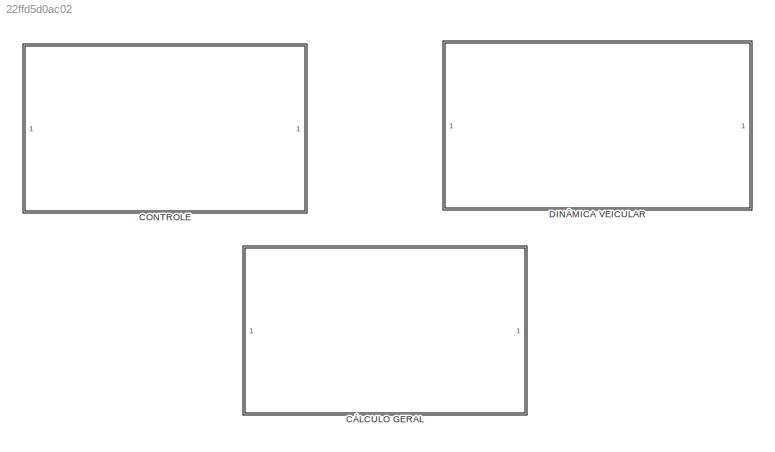
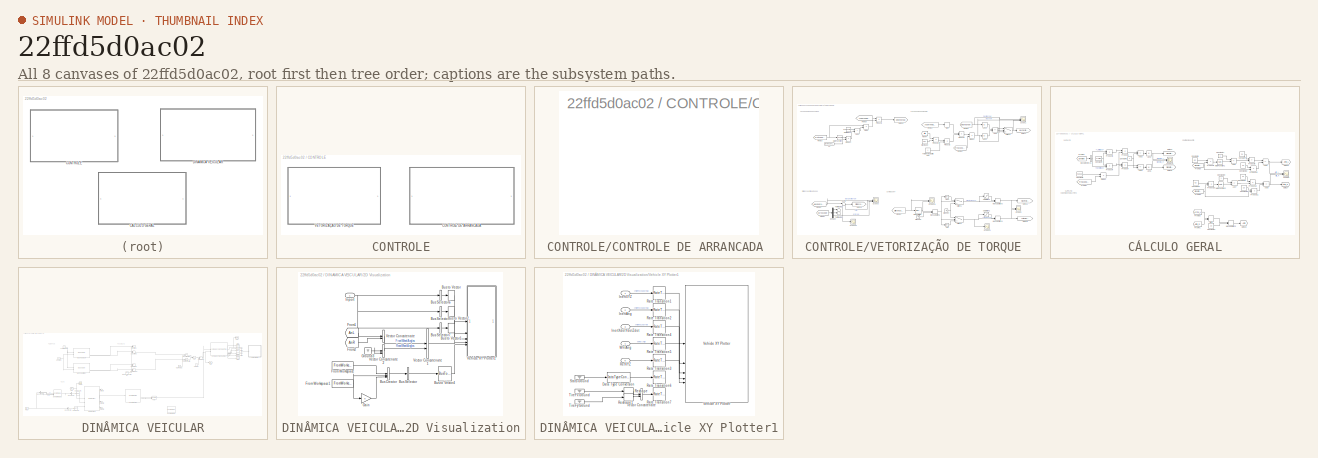
[diagram: thumbnail index - all 8 canvases of the model, root first then tree order]
MODEL slx_22ffd5d0ac02
KIND model
CONFIG AbsTol = auto
CONFIG EnableMultiTasking = off
CONFIG FixedStep = auto
CONFIG MaxStep = auto
CONFIG MinStep = auto
CONFIG RelTol = 1e-3
CONFIG SampleTimeConstraint = Unconstrained
CONFIG SolverName = VariableStepAuto
CONFIG StartTime = 0.0
CONFIG StopTime = 100
BLOCK [SubSystem] CONTROLE
BLOCK [SubSystem] CONTROLE/CONTROLE DE ARRANCADA 
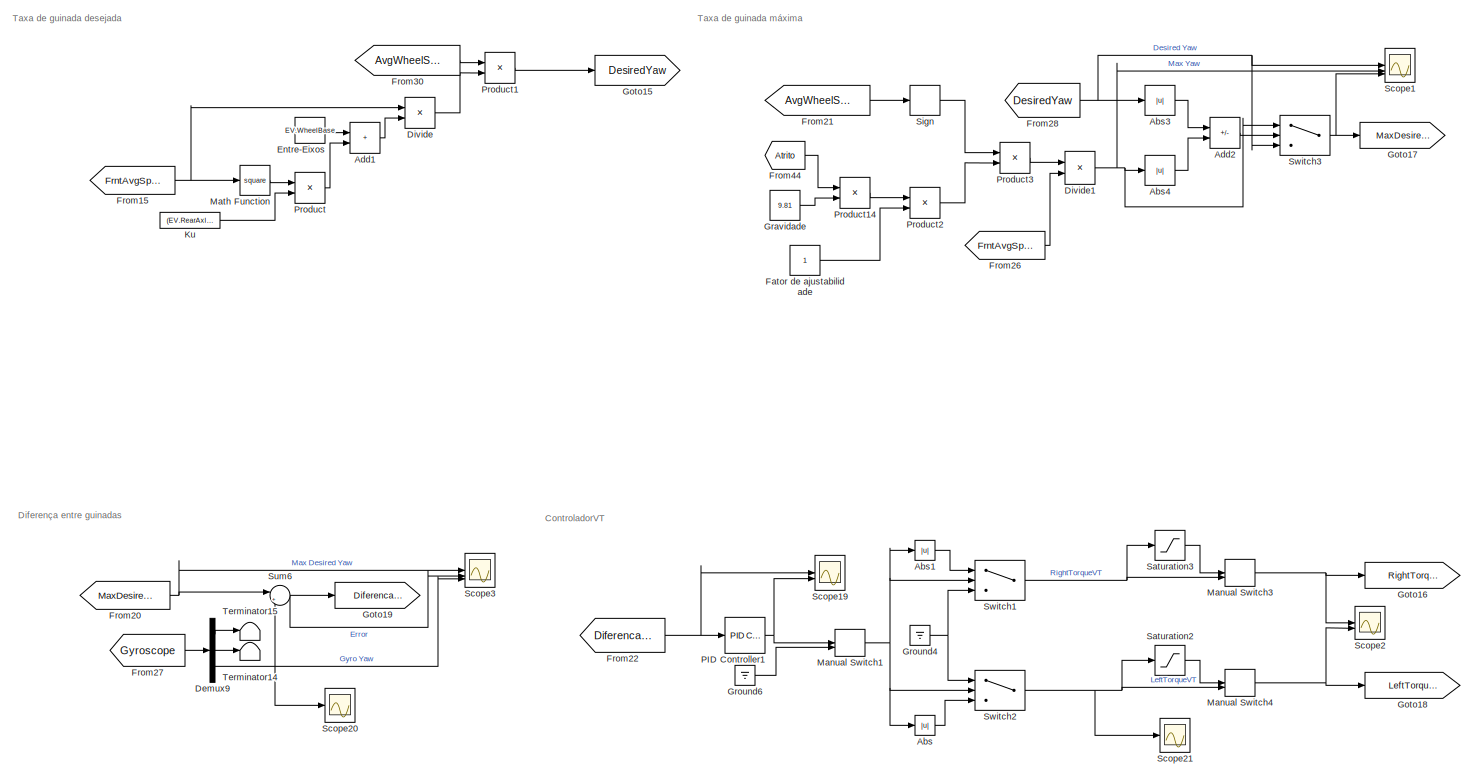
[diagram: CONTROLE/VETORIZAÇÃO DE TORQUE  - part 1/1, most of the canvas]
BLOCK [SubSystem] CONTROLE/VETORIZAÇÃO DE TORQUE 
BLOCK [Abs] CONTROLE/VETORIZAÇÃO DE TORQUE /Abs
  Commented = on
  SaturateOnIntegerOverflow = off
BLOCK [Abs] CONTROLE/VETORIZAÇÃO DE TORQUE /Abs1
  Commented = on
  SaturateOnIntegerOverflow = off
BLOCK [Abs] CONTROLE/VETORIZAÇÃO DE TORQUE /Abs3
  Commented = on
  SaturateOnIntegerOverflow = off
BLOCK [Abs] CONTROLE/VETORIZAÇÃO DE TORQUE /Abs4
  Commented = on
  SaturateOnIntegerOverflow = off
BLOCK [Sum] CONTROLE/VETORIZAÇÃO DE TORQUE /Add1
  Commented = on
  IconShape = rectangular
BLOCK [Sum] CONTROLE/VETORIZAÇÃO DE TORQUE /Add2
  Commented = on
  IconShape = rectangular
  Inputs = +-
BLOCK [Demux] CONTROLE/VETORIZAÇÃO DE TORQUE /Demux9
  Commented = on
  Outputs = 3
BLOCK [Product] CONTROLE/VETORIZAÇÃO DE TORQUE /Divide
  Commented = on
  Inputs = */
BLOCK [Product] CONTROLE/VETORIZAÇÃO DE TORQUE /Divide1
  Commented = on
  Inputs = */
BLOCK [Constant] CONTROLE/VETORIZAÇÃO DE TORQUE /Entre-Eixos
  Commented = on
  Value = EV.WheelBase
BLOCK [Constant] CONTROLE/VETORIZAÇÃO DE TORQUE /Fator de ajustabilidade
  Commented = on
  NameLocation = top
BLOCK [From] CONTROLE/VETORIZAÇÃO DE TORQUE /From15
  Commented = on
  GotoTag = FrntAvgSpeed
BLOCK [From] CONTROLE/VETORIZAÇÃO DE TORQUE /From20
  Commented = on
  GotoTag = MaxDesiredYaw
BLOCK [From] CONTROLE/VETORIZAÇÃO DE TORQUE /From21
  Commented = on
  GotoTag = AvgWheelSteer
BLOCK [From] CONTROLE/VETORIZAÇÃO DE TORQUE /From22
  Commented = on
  GotoTag = DiferencaYaws
BLOCK [From] CONTROLE/VETORIZAÇÃO DE TORQUE /From26
  Commented = on
  GotoTag = FrntAvgSpeed
BLOCK [From] CONTROLE/VETORIZAÇÃO DE TORQUE /From27
  Commented = on
  GotoTag = Gyroscope
BLOCK [From] CONTROLE/VETORIZAÇÃO DE TORQUE /From28
  Commented = on
  GotoTag = DesiredYaw
BLOCK [From] CONTROLE/VETORIZAÇÃO DE TORQUE /From30
  Commented = on
  GotoTag = AvgWheelSteer
BLOCK [From] CONTROLE/VETORIZAÇÃO DE TORQUE /From44
  Commented = on
  GotoTag = Atrito
BLOCK [Goto] CONTROLE/VETORIZAÇÃO DE TORQUE /Goto15
  Commented = on
  GotoTag = DesiredYaw
BLOCK [Goto] CONTROLE/VETORIZAÇÃO DE TORQUE /Goto16
  Commented = on
  GotoTag = RightTorqueVT
BLOCK [Goto] CONTROLE/VETORIZAÇÃO DE TORQUE /Goto17
  Commented = on
  GotoTag = MaxDesiredYaw
BLOCK [Goto] CONTROLE/VETORIZAÇÃO DE TORQUE /Goto18
  Commented = on
  GotoTag = LeftTorqueVT
BLOCK [Goto] CONTROLE/VETORIZAÇÃO DE TORQUE /Goto19
  Commented = on
  GotoTag = DiferencaYaws
BLOCK [Constant] CONTROLE/VETORIZAÇÃO DE TORQUE /Gravidade
  Commented = on
  NameLocation = top
  Value = 9.81
BLOCK [Ground] CONTROLE/VETORIZAÇÃO DE TORQUE /Ground4
  Commented = on
BLOCK [Ground] CONTROLE/VETORIZAÇÃO DE TORQUE /Ground6
  Commented = on
BLOCK [Constant] CONTROLE/VETORIZAÇÃO DE TORQUE /Ku
  Commented = on
  Value = (EV.RearAxlePositionfromCG*EV.Mass)/(EV.CornerStiffFront *EV.WheelBase)-(EV.FrontAxlePositionfromCG*EV.Mass)/(EV.CornerStiffRear*EV.WheelBase)
BLOCK [ManualSwitch] CONTROLE/VETORIZAÇÃO DE TORQUE /Manual Switch1
  Commented = on
BLOCK [ManualSwitch] CONTROLE/VETORIZAÇÃO DE TORQUE /Manual Switch3
  Commented = on
  CurrentSetting = 0
BLOCK [ManualSwitch] CONTROLE/VETORIZAÇÃO DE TORQUE /Manual Switch4
  Commented = on
  CurrentSetting = 0
BLOCK [Math] CONTROLE/VETORIZAÇÃO DE TORQUE /Math Function
  Commented = on
  Operator = square
BLOCK [Reference] CONTROLE/VETORIZAÇÃO DE TORQUE /PID Controller1  REF=slpidlib/PID Controller
  Commented = on
  SourceBlock = slpidlib/PID Controller
  SourceType = PID 1dof
BLOCK [Product] CONTROLE/VETORIZAÇÃO DE TORQUE /Product
  Commented = on
BLOCK [Product] CONTROLE/VETORIZAÇÃO DE TORQUE /Product1
  Commented = on
BLOCK [Product] CONTROLE/VETORIZAÇÃO DE TORQUE /Product14
  Commented = on
BLOCK [Product] CONTROLE/VETORIZAÇÃO DE TORQUE /Product2
  Commented = on
BLOCK [Product] CONTROLE/VETORIZAÇÃO DE TORQUE /Product3
  Commented = on
BLOCK [Saturate] CONTROLE/VETORIZAÇÃO DE TORQUE /Saturation2
  Commented = on
  LowerLimit = 0
  UpperLimit = 11.7
BLOCK [Saturate] CONTROLE/VETORIZAÇÃO DE TORQUE /Saturation3
  Commented = on
  LowerLimit = 0
  UpperLimit = 11.7
BLOCK [Scope] CONTROLE/VETORIZAÇÃO DE TORQUE /Scope1
  Commented = on
  Floating = off
  NumInputPorts = 3
  ScopeSpecificationString = Simulink.scopes.TimeScopeBlockCfg('CurrentConfiguration', extmgr.ConfigurationSet(extmgr.Configuration('Core','General UI',true),extmgr.Configuration('Core','Source UI',true),extmgr.Configuration('Sources','WiredSimulink',true,'DataLoggingVariableName','ScopeData1'),extmgr.Configuration('Visuals','Time Domain',true,'SerializedDisplays',{struct('MinYLimReal','-1.7533','MaxYLimReal','0.19481','YLabe...<+1483ch>
BLOCK [Scope] CONTROLE/VETORIZAÇÃO DE TORQUE /Scope19
  Commented = on
  Floating = off
  NumInputPorts = 2
  ScopeSpecificationString = Simulink.scopes.TimeScopeBlockCfg('CurrentConfiguration', extmgr.ConfigurationSet(extmgr.Configuration('Core','General UI',true),extmgr.Configuration('Core','Source UI',true),extmgr.Configuration('Sources','WiredSimulink',true,'DataLoggingVariableName','ScopeData4','DataLoggingSaveFormat','Array'),extmgr.Configuration('Visuals','Time Domain',true,'SerializedDisplays',{struct('MinYLimReal','-41.203...<+1540ch>
BLOCK [Scope] CONTROLE/VETORIZAÇÃO DE TORQUE /Scope2
  Commented = on
  Floating = off
  NumInputPorts = 2
  ScopeSpecificationString = Simulink.scopes.TimeScopeBlockCfg('CurrentConfiguration', extmgr.ConfigurationSet(extmgr.Configuration('Core','General UI',true),extmgr.Configuration('Core','Source UI',true),extmgr.Configuration('Sources','WiredSimulink',true,'DataLoggingVariableName','ScopeData5'),extmgr.Configuration('Visuals','Time Domain',true,'SerializedDisplays',{struct('MinYLimReal','-100828941240.88097','MaxYLimReal','907...<+1507ch>
BLOCK [Scope] CONTROLE/VETORIZAÇÃO DE TORQUE /Scope20
  Commented = on
  Floating = off
  NumInputPorts = 1
  ScopeSpecificationString = Simulink.scopes.TimeScopeBlockCfg('CurrentConfiguration', extmgr.ConfigurationSet(extmgr.Configuration('Core','General UI',true),extmgr.Configuration('Core','Source UI',true),extmgr.Configuration('Sources','WiredSimulink',true,'DataLoggingVariableName','ScopeData2','DataLogging',true,'DataLoggingSaveFormat','Array'),extmgr.Configuration('Visuals','Time Domain',true,'SerializedDisplays',{struct('Mi...<+1471ch>
BLOCK [Scope] CONTROLE/VETORIZAÇÃO DE TORQUE /Scope21
  Commented = on
  Floating = off
  NumInputPorts = 1
  ScopeSpecificationString = Simulink.scopes.TimeScopeBlockCfg('CurrentConfiguration', extmgr.ConfigurationSet(extmgr.Configuration('Core','General UI',true),extmgr.Configuration('Core','Source UI',true),extmgr.Configuration('Sources','WiredSimulink',true,'DataLoggingVariableName','ScopeData6','DataLogging',true,'DataLoggingSaveFormat','Array'),extmgr.Configuration('Visuals','Time Domain',true,'SerializedDisplays',{struct('Mi...<+1508ch>
BLOCK [Scope] CONTROLE/VETORIZAÇÃO DE TORQUE /Scope3
  Commented = on
  Floating = off
  NumInputPorts = 3
  ScopeSpecificationString = Simulink.scopes.TimeScopeBlockCfg('CurrentConfiguration', extmgr.ConfigurationSet(extmgr.Configuration('Core','General UI',true,'FigureColor',[1 1 1]),extmgr.Configuration('Core','Source UI',true),extmgr.Configuration('Sources','WiredSimulink',true,'DataLoggingVariableName','ScopeData3'),extmgr.Configuration('Visuals','Time Domain',true,'SerializedDisplays',{struct('MinYLimReal','-2.27941','MaxYLi...<+1623ch>
BLOCK [Signum] CONTROLE/VETORIZAÇÃO DE TORQUE /Sign
  Commented = on
BLOCK [Sum] CONTROLE/VETORIZAÇÃO DE TORQUE /Sum6
  Commented = on
  Inputs = |+-
BLOCK [Switch] CONTROLE/VETORIZAÇÃO DE TORQUE /Switch1
  Commented = on
  Criteria = u2 > Threshold
  InputSameDT = off
  SaturateOnIntegerOverflow = off
BLOCK [Switch] CONTROLE/VETORIZAÇÃO DE TORQUE /Switch2
  Commented = on
  InputSameDT = off
  SaturateOnIntegerOverflow = off
BLOCK [Switch] CONTROLE/VETORIZAÇÃO DE TORQUE /Switch3
  Commented = on
  Criteria = u2 > Threshold
  InputSameDT = off
  SaturateOnIntegerOverflow = off
BLOCK [Terminator] CONTROLE/VETORIZAÇÃO DE TORQUE /Terminator14
  Commented = on
BLOCK [Terminator] CONTROLE/VETORIZAÇÃO DE TORQUE /Terminator15
  Commented = on
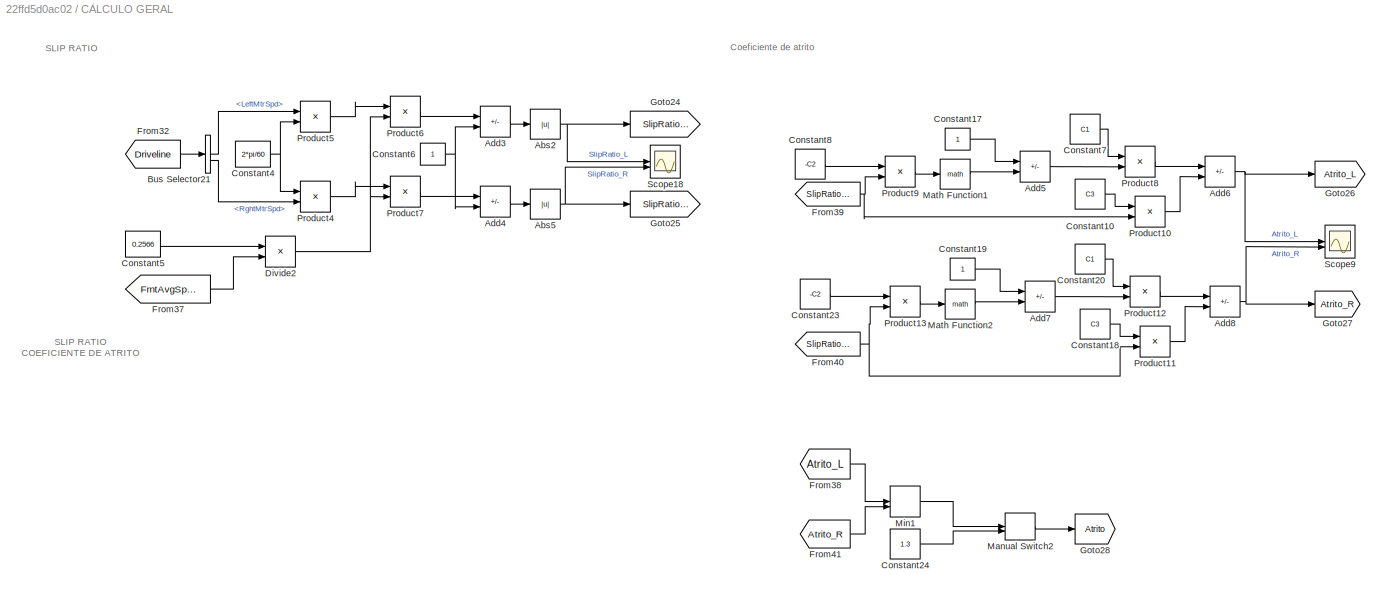
BLOCK [SubSystem] CÁLCULO GERAL
BLOCK [Abs] CÁLCULO GERAL/Abs2
  Commented = on
  SaturateOnIntegerOverflow = off
BLOCK [Abs] CÁLCULO GERAL/Abs5
  Commented = on
  SaturateOnIntegerOverflow = off
BLOCK [Sum] CÁLCULO GERAL/Add3
  Commented = on
  IconShape = rectangular
  Inputs = +-
BLOCK [Sum] CÁLCULO GERAL/Add4
  Commented = on
  IconShape = rectangular
  Inputs = +-
BLOCK [Sum] CÁLCULO GERAL/Add5
  Commented = on
  IconShape = rectangular
  Inputs = +-
BLOCK [Sum] CÁLCULO GERAL/Add6
  Commented = on
  IconShape = rectangular
  Inputs = +-
BLOCK [Sum] CÁLCULO GERAL/Add7
  Commented = on
  IconShape = rectangular
  Inputs = +-
BLOCK [Sum] CÁLCULO GERAL/Add8
  Commented = on
  IconShape = rectangular
  Inputs = +-
BLOCK [BusSelector] CÁLCULO GERAL/Bus Selector21
  Commented = on
  OutputSignals = LeftMtrSpd,RghtMtrSpd
BLOCK [Constant] CÁLCULO GERAL/Constant10
  Commented = on
  Value = C3
BLOCK [Constant] CÁLCULO GERAL/Constant17
  Commented = on
BLOCK [Constant] CÁLCULO GERAL/Constant18
  Commented = on
  Value = C3
BLOCK [Constant] CÁLCULO GERAL/Constant19
  Commented = on
BLOCK [Constant] CÁLCULO GERAL/Constant20
  Commented = on
  Value = C1
BLOCK [Constant] CÁLCULO GERAL/Constant23
  Commented = on
  Value = -C2
BLOCK [Constant] CÁLCULO GERAL/Constant24
  Commented = on
  Value = 1.3
BLOCK [Constant] CÁLCULO GERAL/Constant4
  Commented = on
  Value = 2*pi/60
BLOCK [Constant] CÁLCULO GERAL/Constant5
  Commented = on
  Value = 0.2566
BLOCK [Constant] CÁLCULO GERAL/Constant6
  Commented = on
BLOCK [Constant] CÁLCULO GERAL/Constant7
  Commented = on
  Value = C1
BLOCK [Constant] CÁLCULO GERAL/Constant8
  Commented = on
  Value = -C2
BLOCK [Product] CÁLCULO GERAL/Divide2
  Commented = on
  Inputs = */
BLOCK [From] CÁLCULO GERAL/From32
  Commented = on
  GotoTag = Driveline
BLOCK [From] CÁLCULO GERAL/From37
  Commented = on
  GotoTag = FrntAvgSpeed
BLOCK [From] CÁLCULO GERAL/From38
  Commented = on
  GotoTag = Atrito_L
BLOCK [From] CÁLCULO GERAL/From39
  Commented = on
  GotoTag = SlipRatio_L
BLOCK [From] CÁLCULO GERAL/From40
  Commented = on
  GotoTag = SlipRatio_R
BLOCK [From] CÁLCULO GERAL/From41
  Commented = on
  GotoTag = Atrito_R
BLOCK [Goto] CÁLCULO GERAL/Goto24
  Commented = on
  GotoTag = SlipRatio_L
BLOCK [Goto] CÁLCULO GERAL/Goto25
  Commented = on
  GotoTag = SlipRatio_R
BLOCK [Goto] CÁLCULO GERAL/Goto26
  Commented = on
  GotoTag = Atrito_L
BLOCK [Goto] CÁLCULO GERAL/Goto27
  Commented = on
  GotoTag = Atrito_R
BLOCK [Goto] CÁLCULO GERAL/Goto28
  Commented = on
  GotoTag = Atrito
BLOCK [ManualSwitch] CÁLCULO GERAL/Manual Switch2
  Commented = on
  CurrentSetting = 0
BLOCK [Math] CÁLCULO GERAL/Math Function1
  Commented = on
BLOCK [Math] CÁLCULO GERAL/Math Function2
  Commented = on
BLOCK [MinMax] CÁLCULO GERAL/Min1
  Commented = on
  Inputs = 2
BLOCK [Product] CÁLCULO GERAL/Product10
  Commented = on
BLOCK [Product] CÁLCULO GERAL/Product11
  Commented = on
BLOCK [Product] CÁLCULO GERAL/Product12
  Commented = on
BLOCK [Product] CÁLCULO GERAL/Product13
  Commented = on
BLOCK [Product] CÁLCULO GERAL/Product4
  Commented = on
BLOCK [Product] CÁLCULO GERAL/Product5
  Commented = on
BLOCK [Product] CÁLCULO GERAL/Product6
  Commented = on
BLOCK [Product] CÁLCULO GERAL/Product7
  Commented = on
BLOCK [Product] CÁLCULO GERAL/Product8
  Commented = on
BLOCK [Product] CÁLCULO GERAL/Product9
  Commented = on
BLOCK [Scope] CÁLCULO GERAL/Scope18
  Commented = on
  Floating = off
  NumInputPorts = 2
  ScopeSpecificationString = Simulink.scopes.TimeScopeBlockCfg('CurrentConfiguration', extmgr.ConfigurationSet(extmgr.Configuration('Core','General UI',true),extmgr.Configuration('Core','Source UI',true),extmgr.Configuration('Sources','WiredSimulink',true,'DataLoggingVariableName','ScopeData7'),extmgr.Configuration('Visuals','Time Domain',true,'SerializedDisplays',{struct('MinYLimReal','-0.01332','MaxYLimReal','0.12067','YLab...<+1460ch>
BLOCK [Scope] CÁLCULO GERAL/Scope9
  Commented = on
  Floating = off
  NumInputPorts = 2
  ScopeSpecificationString = Simulink.scopes.TimeScopeBlockCfg('CurrentConfiguration', extmgr.ConfigurationSet(extmgr.Configuration('Core','General UI',true),extmgr.Configuration('Core','Source UI',true),extmgr.Configuration('Sources','WiredSimulink',true,'DataLoggingVariableName','ScopeData8'),extmgr.Configuration('Visuals','Time Domain',true,'SerializedDisplays',{struct('MinYLimReal','-0.13806','MaxYLimReal','1.26722','YLab...<+1454ch>
BLOCK [SubSystem] DINÂMICA VEICULAR
BLOCK [SubSystem] DINÂMICA VEICULAR/2D Visualization
BLOCK [BusCreator] DINÂMICA VEICULAR/2D Visualization/Bus Creator
  DisplayOption = bar
  InheritFromInputs = on
  Inputs = 3
BLOCK [BusSelector] DINÂMICA VEICULAR/2D Visualization/Bus Selector
  OutputAsBus = on
  OutputSignals = signal1,signal2,signal3
BLOCK [BusSelector] DINÂMICA VEICULAR/2D Visualization/Bus Selector1
  OutputAsBus = on
  OutputSignals = InertFrm.Cg.Ang.phi,InertFrm.Cg.Ang.theta,InertFrm.Cg.Ang.psi
BLOCK [BusSelector] DINÂMICA VEICULAR/2D Visualization/Bus Selector6
  OutputAsBus = on
  OutputSignals = InertFrm.Geom.Disp.X,InertFrm.Geom.Disp.Y,InertFrm.Geom.Disp.Z
BLOCK [BusSelector] DINÂMICA VEICULAR/2D Visualization/Bus Selector7
  OutputAsBus = on
  OutputSignals = InertFrm.Geom.Vel.Xdot,InertFrm.Geom.Vel.Ydot,InertFrm.Geom.Vel.Zdot
BLOCK [BusToVector] DINÂMICA VEICULAR/2D Visualization/Bus to Vector
BLOCK [BusToVector] DINÂMICA VEICULAR/2D Visualization/Bus to Vector1
BLOCK [BusToVector] DINÂMICA VEICULAR/2D Visualization/Bus to Vector2
BLOCK [BusToVector] DINÂMICA VEICULAR/2D Visualization/Bus to Vector4
BLOCK [FromWorkspace] DINÂMICA VEICULAR/2D Visualization/From Workspace
  VariableName = [tRef xRef]
BLOCK [FromWorkspace] DINÂMICA VEICULAR/2D Visualization/From Workspace1
  VariableName = [tRef yRef]
BLOCK [From] DINÂMICA VEICULAR/2D Visualization/From1
  GotoTag = AnL
BLOCK [From] DINÂMICA VEICULAR/2D Visualization/From2
  GotoTag = AnR
BLOCK [Gain] DINÂMICA VEICULAR/2D Visualization/Gain
  Gain = 0
BLOCK [Ground] DINÂMICA VEICULAR/2D Visualization/Ground3
BLOCK [Inport] DINÂMICA VEICULAR/2D Visualization/Inport
BLOCK [Concatenate] DINÂMICA VEICULAR/2D Visualization/Vector Concatenate
BLOCK [Concatenate] DINÂMICA VEICULAR/2D Visualization/Vector Concatenate1
BLOCK [Concatenate] DINÂMICA VEICULAR/2D Visualization/Vector Concatenate2
BLOCK [SubSystem] DINÂMICA VEICULAR/2D Visualization/Vehicle XY Plotter1
BLOCK [DataTypeConversion] DINÂMICA VEICULAR/2D Visualization/Vehicle XY Plotter1/Data Type Conversion
  OutDataTypeStr = double
  RndMeth = Floor
  SaturateOnIntegerOverflow = off
BLOCK [Inport] DINÂMICA VEICULAR/2D Visualization/Vehicle XY Plotter1/InertAng
  Port = 2
BLOCK [Inport] DINÂMICA VEICULAR/2D Visualization/Vehicle XY Plotter1/InertXYZ
BLOCK [Inport] DINÂMICA VEICULAR/2D Visualization/Vehicle XY Plotter1/InertXdotYdotZdot
  Port = 3
BLOCK [RateTransition] DINÂMICA VEICULAR/2D Visualization/Vehicle XY Plotter1/Rate Transition1
  Deterministic = off
  OutPortSampleTime = pltDT
BLOCK [RateTransition] DINÂMICA VEICULAR/2D Visualization/Vehicle XY Plotter1/Rate Transition2
  Deterministic = off
  OutPortSampleTime = pltDT
BLOCK [RateTransition] DINÂMICA VEICULAR/2D Visualization/Vehicle XY Plotter1/Rate Transition3
  Deterministic = off
  OutPortSampleTime = pltDT
BLOCK [RateTransition] DINÂMICA VEICULAR/2D Visualization/Vehicle XY Plotter1/Rate Transition4
  Deterministic = off
  OutPortSampleTime = pltDT
BLOCK [RateTransition] DINÂMICA VEICULAR/2D Visualization/Vehicle XY Plotter1/Rate Transition5
  Deterministic = off
  OutPortSampleTime = pltDT
BLOCK [RateTransition] DINÂMICA VEICULAR/2D Visualization/Vehicle XY Plotter1/Rate Transition6
  Deterministic = off
  OutPortSampleTime = pltDT
BLOCK [RateTransition] DINÂMICA VEICULAR/2D Visualization/Vehicle XY Plotter1/Rate Transition7
  Deterministic = off
  OutPortSampleTime = pltDT
BLOCK [Inport] DINÂMICA VEICULAR/2D Visualization/Vehicle XY Plotter1/RefXYZ
  Port = 5
BLOCK [Reshape] DINÂMICA VEICULAR/2D Visualization/Vehicle XY Plotter1/Reshape
  OutputDimensionality = Row vector (2-D)
BLOCK [Reshape] DINÂMICA VEICULAR/2D Visualization/Vehicle XY Plotter1/Reshape1
  OutputDimensionality = Row vector (2-D)
BLOCK [Ground] DINÂMICA VEICULAR/2D Visualization/Vehicle XY Plotter1/Stats Ground
BLOCK [Ground] DINÂMICA VEICULAR/2D Visualization/Vehicle XY Plotter1/TireFx Ground
BLOCK [Ground] DINÂMICA VEICULAR/2D Visualization/Vehicle XY Plotter1/TireFy Ground
BLOCK [Concatenate] DINÂMICA VEICULAR/2D Visualization/Vehicle XY Plotter1/Vector Concatenate
  Mode = Multidimensional array
BLOCK [Reference] DINÂMICA VEICULAR/2D Visualization/Vehicle XY Plotter1/Vehicle XY Plotter  REF=vehdynlibviscommon/Vehicle XY Plotter
  SourceBlock = vehdynlibviscommon/Vehicle XY Plotter
  SourceType = Vehicle XY Plotter
BLOCK [Inport] DINÂMICA VEICULAR/2D Visualization/Vehicle XY Plotter1/WhlAng
  Port = 4
BLOCK [Constant] DINÂMICA VEICULAR/AcumuladorVolt
  Value = 80
BLOCK [Sum] DINÂMICA VEICULAR/Add
  IconShape = rectangular
BLOCK [BusSelector] DINÂMICA VEICULAR/Bus Selector
  OutputAsBus = on
  OutputSignals = XRef,YRef,PhiRef
BLOCK [BusSelector] DINÂMICA VEICULAR/Bus Selector1
  OutputSignals = InertFrm.Cg.Disp.X,InertFrm.Cg.Disp.Y,InertFrm.Cg.Ang.psi
BLOCK [BusSelector] DINÂMICA VEICULAR/Bus Selector6
  OutputAsBus = on
  OutputSignals = InertFrm.Cg.Disp.X,InertFrm.Cg.Disp.Y,InertFrm.Cg.Disp.Z
BLOCK [BusToVector] DINÂMICA VEICULAR/Bus to Vector
BLOCK [BusToVector] DINÂMICA VEICULAR/Bus to Vector1
BLOCK [Constant] DINÂMICA VEICULAR/Constant
  Value = 2
BLOCK [Reference] DINÂMICA VEICULAR/Constant Radius  REF=vehdynlibscenariocommon/Constant Radius Signal Input
  LibrarySourceBlock = vehdynlibscenario/Constant Radius
  SourceBlock = vehdynlibscenariocommon/Constant Radius Signal Input
  SourceType = Constant Radius
BLOCK [Reference] DINÂMICA VEICULAR/Constant Radius1  REF=vehdynlibscenariocommon/Constant Radius Signal Input
  LibrarySourceBlock = vehdynlibscenario/Constant Radius
  SourceBlock = vehdynlibscenariocommon/Constant Radius Signal Input
  SourceType = Constant Radius
BLOCK [Constant] DINÂMICA VEICULAR/Constant2
  Value = 10
BLOCK [From] DINÂMICA VEICULAR/From
  GotoTag = Vel
BLOCK [From] DINÂMICA VEICULAR/From1
  GotoTag = info
BLOCK [Goto] DINÂMICA VEICULAR/Goto
  GotoTag = Vel
BLOCK [Goto] DINÂMICA VEICULAR/Goto1
  GotoTag = xdot
BLOCK [Goto] DINÂMICA VEICULAR/Goto2
  GotoTag = ydot
BLOCK [Goto] DINÂMICA VEICULAR/Goto3
  GotoTag = psi
BLOCK [Goto] DINÂMICA VEICULAR/Goto4
  GotoTag = r
BLOCK [Goto] DINÂMICA VEICULAR/Goto5
  GotoTag = FzF
BLOCK [Goto] DINÂMICA VEICULAR/Goto6
  GotoTag = FzR
BLOCK [Goto] DINÂMICA VEICULAR/Goto7
  GotoTag = info
BLOCK [Reference] DINÂMICA VEICULAR/Kinematic Steering  REF=vehdynlibsteering/Kinematic Steering
  SourceBlock = vehdynlibsteering/Kinematic Steering
  SourceType = Kinematic Steering
BLOCK [Reference] DINÂMICA VEICULAR/Mapped Motor Left  REF=autolibmappedmotor/Mapped Motor
  LibrarySourceBlock = vdynlib/Powertrain/Propulsion/Mapped Motor
  SourceBlock = autolibmappedmotor/Mapped Motor
  SourceType = MappedMotor
BLOCK [Reference] DINÂMICA VEICULAR/Mapped Motor Right  REF=autolibmappedmotor/Mapped Motor
  LibrarySourceBlock = vdynlib/Powertrain/Propulsion/Mapped Motor
  SourceBlock = autolibmappedmotor/Mapped Motor
  SourceType = MappedMotor
BLOCK [Reference] DINÂMICA VEICULAR/Predictive Driver1  REF=vehdynlibdriver/Predictive Driver
  SourceBlock = vehdynlibdriver/Predictive Driver
  SourceType = Predictive Driver
BLOCK [Constant] DINÂMICA VEICULAR/RaioRoda(m)
  Value = 0.33
  VectorParams1D = off
BLOCK [Constant] DINÂMICA VEICULAR/Relação Transmissão
  Value = 8.89
BLOCK [Scope] DINÂMICA VEICULAR/Scope
  Floating = off
  NumInputPorts = 1
  ScopeSpecificationString = Simulink.scopes.TimeScopeBlockCfg('CurrentConfiguration', extmgr.ConfigurationSet(extmgr.Configuration('Core','General UI',true),extmgr.Configuration('Core','Source UI',true),extmgr.Configuration('Sources','WiredSimulink',true),extmgr.Configuration('Visuals','Time Domain',true,'SerializedDisplays',{struct('MinYLimReal','29.48398','MaxYLimReal','29.48614','YLabelReal','','MinYLimMag','29.48398','Ma...<+1444ch>
BLOCK [Product] DINÂMICA VEICULAR/SpdLeftRear
  Inputs = */
BLOCK [Product] DINÂMICA VEICULAR/SpdLeftRear(m//s)
BLOCK [Product] DINÂMICA VEICULAR/SpdRightRear
  Inputs = */
BLOCK [Product] DINÂMICA VEICULAR/SpdRightRear(m//s)
BLOCK [Terminator] DINÂMICA VEICULAR/Terminator
BLOCK [Terminator] DINÂMICA VEICULAR/Terminator1
BLOCK [Terminator] DINÂMICA VEICULAR/Terminator2
BLOCK [Product] DINÂMICA VEICULAR/TrqLeftRear
BLOCK [Product] DINÂMICA VEICULAR/TrqRightRear
BLOCK [Reference] DINÂMICA VEICULAR/Vehicle Body 3DOF Dual Track  REF=autolibshared/Vehicle Body 3DOF Single Track
  LibrarySourceBlock = vehdynlibeom/Vehicle Body 3DOF Dual Track
  SourceBlock = autolibshared/Vehicle Body 3DOF Single Track
  SourceType = Vehicle Body 3DOF Lateral
BLOCK [Product] DINÂMICA VEICULAR/VelMédiaCG
  Inputs = */
BLOCK [Concatenate] DINÂMICA VEICULAR/Vetor
  ConcatenateDimension = 2
ANNOTATION CONTROLE/VETORIZAÇÃO DE TORQUE : ControladorVT
ANNOTATION CONTROLE/VETORIZAÇÃO DE TORQUE : Diferença entre guinadas
ANNOTATION CONTROLE/VETORIZAÇÃO DE TORQUE : Taxa de guinada desejada
ANNOTATION CONTROLE/VETORIZAÇÃO DE TORQUE : Taxa de guinada máxima
ANNOTATION CÁLCULO GERAL: SLIP RATIO COEFICIENTE DE ATRITO
ANNOTATION CÁLCULO GERAL: Coeficiente de atrito
ANNOTATION CÁLCULO GERAL: SLIP RATIO
ANNOTATION DINÂMICA VEICULAR: PILOTO
ANNOTATION DINÂMICA VEICULAR: POWERTRAIN
ANNOTATION DINÂMICA VEICULAR: TRANSMISSÃO
LINE CONTROLE/VETORIZAÇÃO DE TORQUE /Abs1:1 -> CONTROLE/VETORIZAÇÃO DE TORQUE /Switch1:1
LINE CONTROLE/VETORIZAÇÃO DE TORQUE /Abs3:1 -> CONTROLE/VETORIZAÇÃO DE TORQUE /Add2:1
LINE CONTROLE/VETORIZAÇÃO DE TORQUE /Abs4:1 -> CONTROLE/VETORIZAÇÃO DE TORQUE /Add2:2
LINE CONTROLE/VETORIZAÇÃO DE TORQUE /Abs:1 -> CONTROLE/VETORIZAÇÃO DE TORQUE /Switch2:3
LINE CONTROLE/VETORIZAÇÃO DE TORQUE /Add1:1 -> CONTROLE/VETORIZAÇÃO DE TORQUE /Divide:2
LINE CONTROLE/VETORIZAÇÃO DE TORQUE /Add2:1 -> CONTROLE/VETORIZAÇÃO DE TORQUE /Switch3:2
LINE CONTROLE/VETORIZAÇÃO DE TORQUE /Demux9:1 -> CONTROLE/VETORIZAÇÃO DE TORQUE /Terminator15:1
LINE CONTROLE/VETORIZAÇÃO DE TORQUE /Demux9:2 -> CONTROLE/VETORIZAÇÃO DE TORQUE /Terminator14:1
NET CONTROLE/VETORIZAÇÃO DE TORQUE /Demux9:3 -> CONTROLE/VETORIZAÇÃO DE TORQUE /Scope20:1, CONTROLE/VETORIZAÇÃO DE TORQUE /Scope3:3, CONTROLE/VETORIZAÇÃO DE TORQUE /Sum6:2
NET CONTROLE/VETORIZAÇÃO DE TORQUE /Divide1:1 -> CONTROLE/VETORIZAÇÃO DE TORQUE /Abs4:1, CONTROLE/VETORIZAÇÃO DE TORQUE /Scope1:2, CONTROLE/VETORIZAÇÃO DE TORQUE /Switch3:1
LINE CONTROLE/VETORIZAÇÃO DE TORQUE /Divide:1 -> CONTROLE/VETORIZAÇÃO DE TORQUE /Product1:2
LINE CONTROLE/VETORIZAÇÃO DE TORQUE /Entre-Eixos:1 -> CONTROLE/VETORIZAÇÃO DE TORQUE /Add1:1
LINE CONTROLE/VETORIZAÇÃO DE TORQUE /Fator de ajustabilidade:1 -> CONTROLE/VETORIZAÇÃO DE TORQUE /Product2:2
NET CONTROLE/VETORIZAÇÃO DE TORQUE /From15:1 -> CONTROLE/VETORIZAÇÃO DE TORQUE /Divide:1, CONTROLE/VETORIZAÇÃO DE TORQUE /Math Function:1
NET CONTROLE/VETORIZAÇÃO DE TORQUE /From20:1 -> CONTROLE/VETORIZAÇÃO DE TORQUE /Scope3:1, CONTROLE/VETORIZAÇÃO DE TORQUE /Sum6:1
LINE CONTROLE/VETORIZAÇÃO DE TORQUE /From21:1 -> CONTROLE/VETORIZAÇÃO DE TORQUE /Sign:1
NET CONTROLE/VETORIZAÇÃO DE TORQUE /From22:1 -> CONTROLE/VETORIZAÇÃO DE TORQUE /PID Controller1:1, CONTROLE/VETORIZAÇÃO DE TORQUE /Scope19:1
LINE CONTROLE/VETORIZAÇÃO DE TORQUE /From26:1 -> CONTROLE/VETORIZAÇÃO DE TORQUE /Divide1:2
LINE CONTROLE/VETORIZAÇÃO DE TORQUE /From27:1 -> CONTROLE/VETORIZAÇÃO DE TORQUE /Demux9:1
NET CONTROLE/VETORIZAÇÃO DE TORQUE /From28:1 -> CONTROLE/VETORIZAÇÃO DE TORQUE /Abs3:1, CONTROLE/VETORIZAÇÃO DE TORQUE /Scope1:1, CONTROLE/VETORIZAÇÃO DE TORQUE /Switch3:3
LINE CONTROLE/VETORIZAÇÃO DE TORQUE /From30:1 -> CONTROLE/VETORIZAÇÃO DE TORQUE /Product1:1
LINE CONTROLE/VETORIZAÇÃO DE TORQUE /From44:1 -> CONTROLE/VETORIZAÇÃO DE TORQUE /Product14:1
LINE CONTROLE/VETORIZAÇÃO DE TORQUE /Gravidade:1 -> CONTROLE/VETORIZAÇÃO DE TORQUE /Product14:2
NET CONTROLE/VETORIZAÇÃO DE TORQUE /Ground4:1 -> CONTROLE/VETORIZAÇÃO DE TORQUE /Switch1:3, CONTROLE/VETORIZAÇÃO DE TORQUE /Switch2:1
LINE CONTROLE/VETORIZAÇÃO DE TORQUE /Ground6:1 -> CONTROLE/VETORIZAÇÃO DE TORQUE /Manual Switch1:2
LINE CONTROLE/VETORIZAÇÃO DE TORQUE /Ku:1 -> CONTROLE/VETORIZAÇÃO DE TORQUE /Product:2
NET CONTROLE/VETORIZAÇÃO DE TORQUE /Manual Switch1:1 -> CONTROLE/VETORIZAÇÃO DE TORQUE /Abs1:1, CONTROLE/VETORIZAÇÃO DE TORQUE /Abs:1, CONTROLE/VETORIZAÇÃO DE TORQUE /Switch1:2, CONTROLE/VETORIZAÇÃO DE TORQUE /Switch2:2
NET CONTROLE/VETORIZAÇÃO DE TORQUE /Manual Switch3:1 -> CONTROLE/VETORIZAÇÃO DE TORQUE /Goto16:1, CONTROLE/VETORIZAÇÃO DE TORQUE /Scope2:1
NET CONTROLE/VETORIZAÇÃO DE TORQUE /Manual Switch4:1 -> CONTROLE/VETORIZAÇÃO DE TORQUE /Goto18:1, CONTROLE/VETORIZAÇÃO DE TORQUE /Scope2:2
LINE CONTROLE/VETORIZAÇÃO DE TORQUE /Math Function:1 -> CONTROLE/VETORIZAÇÃO DE TORQUE /Product:1
NET CONTROLE/VETORIZAÇÃO DE TORQUE /PID Controller1:1 -> CONTROLE/VETORIZAÇÃO DE TORQUE /Manual Switch1:1, CONTROLE/VETORIZAÇÃO DE TORQUE /Scope19:2
LINE CONTROLE/VETORIZAÇÃO DE TORQUE /Product14:1 -> CONTROLE/VETORIZAÇÃO DE TORQUE /Product2:1
LINE CONTROLE/VETORIZAÇÃO DE TORQUE /Product1:1 -> CONTROLE/VETORIZAÇÃO DE TORQUE /Goto15:1
LINE CONTROLE/VETORIZAÇÃO DE TORQUE /Product2:1 -> CONTROLE/VETORIZAÇÃO DE TORQUE /Product3:2
LINE CONTROLE/VETORIZAÇÃO DE TORQUE /Product3:1 -> CONTROLE/VETORIZAÇÃO DE TORQUE /Divide1:1
LINE CONTROLE/VETORIZAÇÃO DE TORQUE /Product:1 -> CONTROLE/VETORIZAÇÃO DE TORQUE /Add1:2
LINE CONTROLE/VETORIZAÇÃO DE TORQUE /Saturation2:1 -> CONTROLE/VETORIZAÇÃO DE TORQUE /Manual Switch4:1
LINE CONTROLE/VETORIZAÇÃO DE TORQUE /Saturation3:1 -> CONTROLE/VETORIZAÇÃO DE TORQUE /Manual Switch3:1
LINE CONTROLE/VETORIZAÇÃO DE TORQUE /Sign:1 -> CONTROLE/VETORIZAÇÃO DE TORQUE /Product3:1
NET CONTROLE/VETORIZAÇÃO DE TORQUE /Sum6:1 -> CONTROLE/VETORIZAÇÃO DE TORQUE /Goto19:1, CONTROLE/VETORIZAÇÃO DE TORQUE /Scope3:2
NET CONTROLE/VETORIZAÇÃO DE TORQUE /Switch1:1 -> CONTROLE/VETORIZAÇÃO DE TORQUE /Manual Switch3:2, CONTROLE/VETORIZAÇÃO DE TORQUE /Saturation3:1
NET CONTROLE/VETORIZAÇÃO DE TORQUE /Switch2:1 -> CONTROLE/VETORIZAÇÃO DE TORQUE /Manual Switch4:2, CONTROLE/VETORIZAÇÃO DE TORQUE /Saturation2:1, CONTROLE/VETORIZAÇÃO DE TORQUE /Scope21:1
NET CONTROLE/VETORIZAÇÃO DE TORQUE /Switch3:1 -> CONTROLE/VETORIZAÇÃO DE TORQUE /Goto17:1, CONTROLE/VETORIZAÇÃO DE TORQUE /Scope1:3
NET CÁLCULO GERAL/Abs2:1 -> CÁLCULO GERAL/Goto24:1, CÁLCULO GERAL/Scope18:1
NET CÁLCULO GERAL/Abs5:1 -> CÁLCULO GERAL/Goto25:1, CÁLCULO GERAL/Scope18:2
LINE CÁLCULO GERAL/Add3:1 -> CÁLCULO GERAL/Abs2:1
LINE CÁLCULO GERAL/Add4:1 -> CÁLCULO GERAL/Abs5:1
LINE CÁLCULO GERAL/Add5:1 -> CÁLCULO GERAL/Product8:2
NET CÁLCULO GERAL/Add6:1 -> CÁLCULO GERAL/Goto26:1, CÁLCULO GERAL/Scope9:1
LINE CÁLCULO GERAL/Add7:1 -> CÁLCULO GERAL/Product12:2
NET CÁLCULO GERAL/Add8:1 -> CÁLCULO GERAL/Goto27:1, CÁLCULO GERAL/Scope9:2
LINE CÁLCULO GERAL/Bus Selector21:1 -> CÁLCULO GERAL/Product5:1
LINE CÁLCULO GERAL/Bus Selector21:2 -> CÁLCULO GERAL/Product4:2
LINE CÁLCULO GERAL/Constant10:1 -> CÁLCULO GERAL/Product10:1
LINE CÁLCULO GERAL/Constant17:1 -> CÁLCULO GERAL/Add5:1
LINE CÁLCULO GERAL/Constant18:1 -> CÁLCULO GERAL/Product11:1
LINE CÁLCULO GERAL/Constant19:1 -> CÁLCULO GERAL/Add7:1
LINE CÁLCULO GERAL/Constant20:1 -> CÁLCULO GERAL/Product12:1
LINE CÁLCULO GERAL/Constant23:1 -> CÁLCULO GERAL/Product13:1
LINE CÁLCULO GERAL/Constant24:1 -> CÁLCULO GERAL/Manual Switch2:2
NET CÁLCULO GERAL/Constant4:1 -> CÁLCULO GERAL/Product4:1, CÁLCULO GERAL/Product5:2
LINE CÁLCULO GERAL/Constant5:1 -> CÁLCULO GERAL/Divide2:1
NET CÁLCULO GERAL/Constant6:1 -> CÁLCULO GERAL/Add3:2, CÁLCULO GERAL/Add4:2
LINE CÁLCULO GERAL/Constant7:1 -> CÁLCULO GERAL/Product8:1
LINE CÁLCULO GERAL/Constant8:1 -> CÁLCULO GERAL/Product9:1
NET CÁLCULO GERAL/Divide2:1 -> CÁLCULO GERAL/Product6:2, CÁLCULO GERAL/Product7:2
LINE CÁLCULO GERAL/From32:1 -> CÁLCULO GERAL/Bus Selector21:1
LINE CÁLCULO GERAL/From37:1 -> CÁLCULO GERAL/Divide2:2
LINE CÁLCULO GERAL/From38:1 -> CÁLCULO GERAL/Min1:1
NET CÁLCULO GERAL/From39:1 -> CÁLCULO GERAL/Product10:2, CÁLCULO GERAL/Product9:2
NET CÁLCULO GERAL/From40:1 -> CÁLCULO GERAL/Product11:2, CÁLCULO GERAL/Product13:2
LINE CÁLCULO GERAL/From41:1 -> CÁLCULO GERAL/Min1:2
LINE CÁLCULO GERAL/Manual Switch2:1 -> CÁLCULO GERAL/Goto28:1
LINE CÁLCULO GERAL/Math Function1:1 -> CÁLCULO GERAL/Add5:2
LINE CÁLCULO GERAL/Math Function2:1 -> CÁLCULO GERAL/Add7:2
LINE CÁLCULO GERAL/Min1:1 -> CÁLCULO GERAL/Manual Switch2:1
LINE CÁLCULO GERAL/Product10:1 -> CÁLCULO GERAL/Add6:2
LINE CÁLCULO GERAL/Product11:1 -> CÁLCULO GERAL/Add8:2
LINE CÁLCULO GERAL/Product12:1 -> CÁLCULO GERAL/Add8:1
LINE CÁLCULO GERAL/Product13:1 -> CÁLCULO GERAL/Math Function2:1
LINE CÁLCULO GERAL/Product4:1 -> CÁLCULO GERAL/Product7:1
LINE CÁLCULO GERAL/Product5:1 -> CÁLCULO GERAL/Product6:1
LINE CÁLCULO GERAL/Product6:1 -> CÁLCULO GERAL/Add3:1
LINE CÁLCULO GERAL/Product7:1 -> CÁLCULO GERAL/Add4:1
LINE CÁLCULO GERAL/Product8:1 -> CÁLCULO GERAL/Add6:1
LINE CÁLCULO GERAL/Product9:1 -> CÁLCULO GERAL/Math Function1:1
LINE DINÂMICA VEICULAR/2D Visualization/Bus Creator:1 -> DINÂMICA VEICULAR/2D Visualization/Bus Selector:1
LINE DINÂMICA VEICULAR/2D Visualization/Bus Selector1:1 -> DINÂMICA VEICULAR/2D Visualization/Bus to Vector2:1
LINE DINÂMICA VEICULAR/2D Visualization/Bus Selector6:1 -> DINÂMICA VEICULAR/2D Visualization/Bus to Vector:1
LINE DINÂMICA VEICULAR/2D Visualization/Bus Selector7:1 -> DINÂMICA VEICULAR/2D Visualization/Bus to Vector1:1
LINE DINÂMICA VEICULAR/2D Visualization/Bus Selector:1 -> DINÂMICA VEICULAR/2D Visualization/Bus to Vector4:1
LINE DINÂMICA VEICULAR/2D Visualization/Bus to Vector1:1 -> DINÂMICA VEICULAR/2D Visualization/Vehicle XY Plotter1:3
LINE DINÂMICA VEICULAR/2D Visualization/Bus to Vector2:1 -> DINÂMICA VEICULAR/2D Visualization/Vehicle XY Plotter1:2
LINE DINÂMICA VEICULAR/2D Visualization/Bus to Vector4:1 -> DINÂMICA VEICULAR/2D Visualization/Vehicle XY Plotter1:5
LINE DINÂMICA VEICULAR/2D Visualization/Bus to Vector:1 -> DINÂMICA VEICULAR/2D Visualization/Vehicle XY Plotter1:1
NET DINÂMICA VEICULAR/2D Visualization/From Workspace1:1 -> DINÂMICA VEICULAR/2D Visualization/Bus Creator:2, DINÂMICA VEICULAR/2D Visualization/Gain:1
LINE DINÂMICA VEICULAR/2D Visualization/From Workspace:1 -> DINÂMICA VEICULAR/2D Visualization/Bus Creator:1
LINE DINÂMICA VEICULAR/2D Visualization/From1:1 -> DINÂMICA VEICULAR/2D Visualization/Vector Concatenate:1
LINE DINÂMICA VEICULAR/2D Visualization/From2:1 -> DINÂMICA VEICULAR/2D Visualization/Vector Concatenate:2
LINE DINÂMICA VEICULAR/2D Visualization/Gain:1 -> DINÂMICA VEICULAR/2D Visualization/Bus Creator:3
NET DINÂMICA VEICULAR/2D Visualization/Ground3:1 -> DINÂMICA VEICULAR/2D Visualization/Vector Concatenate2:1, DINÂMICA VEICULAR/2D Visualization/Vector Concatenate2:2
NET DINÂMICA VEICULAR/2D Visualization/Inport:1 -> DINÂMICA VEICULAR/2D Visualization/Bus Selector1:1, DINÂMICA VEICULAR/2D Visualization/Bus Selector6:1, DINÂMICA VEICULAR/2D Visualization/Bus Selector7:1
LINE DINÂMICA VEICULAR/2D Visualization/Vector Concatenate1:1 -> DINÂMICA VEICULAR/2D Visualization/Vehicle XY Plotter1:4
LINE DINÂMICA VEICULAR/2D Visualization/Vector Concatenate2:1 -> DINÂMICA VEICULAR/2D Visualization/Vector Concatenate1:2
LINE DINÂMICA VEICULAR/2D Visualization/Vector Concatenate:1 -> DINÂMICA VEICULAR/2D Visualization/Vector Concatenate1:1
LINE DINÂMICA VEICULAR/2D Visualization/Vehicle XY Plotter1/Data Type Conversion:1 -> DINÂMICA VEICULAR/2D Visualization/Vehicle XY Plotter1/Rate Transition6:1
LINE DINÂMICA VEICULAR/2D Visualization/Vehicle XY Plotter1/InertAng:1 -> DINÂMICA VEICULAR/2D Visualization/Vehicle XY Plotter1/Rate Transition2:1
LINE DINÂMICA VEICULAR/2D Visualization/Vehicle XY Plotter1/InertXYZ:1 -> DINÂMICA VEICULAR/2D Visualization/Vehicle XY Plotter1/Rate Transition1:1
LINE DINÂMICA VEICULAR/2D Visualization/Vehicle XY Plotter1/InertXdotYdotZdot:1 -> DINÂMICA VEICULAR/2D Visualization/Vehicle XY Plotter1/Rate Transition4:1
LINE DINÂMICA VEICULAR/2D Visualization/Vehicle XY Plotter1/Rate Transition1:1 -> DINÂMICA VEICULAR/2D Visualization/Vehicle XY Plotter1/Vehicle XY Plotter:1
LINE DINÂMICA VEICULAR/2D Visualization/Vehicle XY Plotter1/Rate Transition2:1 -> DINÂMICA VEICULAR/2D Visualization/Vehicle XY Plotter1/Vehicle XY Plotter:2
LINE DINÂMICA VEICULAR/2D Visualization/Vehicle XY Plotter1/Rate Transition3:1 -> DINÂMICA VEICULAR/2D Visualization/Vehicle XY Plotter1/Vehicle XY Plotter:5
LINE DINÂMICA VEICULAR/2D Visualization/Vehicle XY Plotter1/Rate Transition4:1 -> DINÂMICA VEICULAR/2D Visualization/Vehicle XY Plotter1/Vehicle XY Plotter:3
LINE DINÂMICA VEICULAR/2D Visualization/Vehicle XY Plotter1/Rate Transition5:1 -> DINÂMICA VEICULAR/2D Visualization/Vehicle XY Plotter1/Vehicle XY Plotter:4
LINE DINÂMICA VEICULAR/2D Visualization/Vehicle XY Plotter1/RefXYZ:1 -> DINÂMICA VEICULAR/2D Visualization/Vehicle XY Plotter1/Rate Transition3:1
LINE DINÂMICA VEICULAR/2D Visualization/Vehicle XY Plotter1/Reshape1:1 -> DINÂMICA VEICULAR/2D Visualization/Vehicle XY Plotter1/Vector Concatenate:2
LINE DINÂMICA VEICULAR/2D Visualization/Vehicle XY Plotter1/Reshape:1 -> DINÂMICA VEICULAR/2D Visualization/Vehicle XY Plotter1/Vector Concatenate:1
LINE DINÂMICA VEICULAR/2D Visualization/Vehicle XY Plotter1/Stats Ground:1 -> DINÂMICA VEICULAR/2D Visualization/Vehicle XY Plotter1/Data Type Conversion:1
LINE DINÂMICA VEICULAR/2D Visualization/Vehicle XY Plotter1/TireFx Ground:1 -> DINÂMICA VEICULAR/2D Visualization/Vehicle XY Plotter1/Reshape:1
LINE DINÂMICA VEICULAR/2D Visualization/Vehicle XY Plotter1/TireFy Ground:1 -> DINÂMICA VEICULAR/2D Visualization/Vehicle XY Plotter1/Reshape1:1
LINE DINÂMICA VEICULAR/2D Visualization/Vehicle XY Plotter1/Vector Concatenate:1 -> DINÂMICA VEICULAR/2D Visualization/Vehicle XY Plotter1/Rate Transition7:1
LINE DINÂMICA VEICULAR/2D Visualization/Vehicle XY Plotter1/WhlAng:1 -> DINÂMICA VEICULAR/2D Visualization/Vehicle XY Plotter1/Rate Transition5:1
NET DINÂMICA VEICULAR/AcumuladorVolt:1 -> DINÂMICA VEICULAR/Mapped Motor Left:1, DINÂMICA VEICULAR/Mapped Motor Right:1
LINE DINÂMICA VEICULAR/Add:1 -> DINÂMICA VEICULAR/VelMédiaCG:1
LINE DINÂMICA VEICULAR/Bus Selector1:1 -> DINÂMICA VEICULAR/Constant Radius1:1
LINE DINÂMICA VEICULAR/Bus Selector1:2 -> DINÂMICA VEICULAR/Constant Radius1:2
LINE DINÂMICA VEICULAR/Bus Selector1:3 -> DINÂMICA VEICULAR/Constant Radius1:3
LINE DINÂMICA VEICULAR/Bus Selector6:1 -> DINÂMICA VEICULAR/Bus to Vector:1
LINE DINÂMICA VEICULAR/Bus Selector:1 -> DINÂMICA VEICULAR/Bus to Vector1:1
LINE DINÂMICA VEICULAR/Bus to Vector1:1 -> DINÂMICA VEICULAR/Predictive Driver1:2
LINE DINÂMICA VEICULAR/Bus to Vector:1 -> DINÂMICA VEICULAR/Predictive Driver1:5
LINE DINÂMICA VEICULAR/Constant Radius1:1 -> DINÂMICA VEICULAR/Bus Selector:1
NET DINÂMICA VEICULAR/Constant2:1 -> DINÂMICA VEICULAR/Mapped Motor Left:2, DINÂMICA VEICULAR/Mapped Motor Right:2
LINE DINÂMICA VEICULAR/Constant:1 -> DINÂMICA VEICULAR/VelMédiaCG:2
NET DINÂMICA VEICULAR/From1:1 -> DINÂMICA VEICULAR/Bus Selector1:1, DINÂMICA VEICULAR/Bus Selector6:1
NET DINÂMICA VEICULAR/From:1 -> DINÂMICA VEICULAR/Predictive Driver1:1, DINÂMICA VEICULAR/Scope:1
LINE DINÂMICA VEICULAR/Kinematic Steering:2 -> DINÂMICA VEICULAR/Vetor:1
LINE DINÂMICA VEICULAR/Kinematic Steering:3 -> DINÂMICA VEICULAR/Vetor:2
LINE DINÂMICA VEICULAR/Mapped Motor Left:3 -> DINÂMICA VEICULAR/TrqLeftRear:1
LINE DINÂMICA VEICULAR/Mapped Motor Left:4 -> DINÂMICA VEICULAR/SpdLeftRear:1
LINE DINÂMICA VEICULAR/Mapped Motor Right:3 -> DINÂMICA VEICULAR/TrqRightRear:1
LINE DINÂMICA VEICULAR/Mapped Motor Right:4 -> DINÂMICA VEICULAR/SpdRightRear:1
LINE DINÂMICA VEICULAR/Predictive Driver1:1 -> DINÂMICA VEICULAR/Terminator:1
LINE DINÂMICA VEICULAR/Predictive Driver1:2 -> DINÂMICA VEICULAR/Kinematic Steering:1
LINE DINÂMICA VEICULAR/Predictive Driver1:3 -> DINÂMICA VEICULAR/Terminator2:1
LINE DINÂMICA VEICULAR/Predictive Driver1:4 -> DINÂMICA VEICULAR/Terminator1:1
NET DINÂMICA VEICULAR/RaioRoda(m):1 -> DINÂMICA VEICULAR/SpdLeftRear(m//s):2, DINÂMICA VEICULAR/SpdRightRear(m//s):2
NET DINÂMICA VEICULAR/Relação Transmissão:1 -> DINÂMICA VEICULAR/SpdLeftRear:2, DINÂMICA VEICULAR/SpdRightRear:2, DINÂMICA VEICULAR/TrqLeftRear:2, DINÂMICA VEICULAR/TrqRightRear:2
LINE DINÂMICA VEICULAR/SpdLeftRear(m//s):1 -> DINÂMICA VEICULAR/Add:1
LINE DINÂMICA VEICULAR/SpdLeftRear:1 -> DINÂMICA VEICULAR/SpdLeftRear(m//s):1
LINE DINÂMICA VEICULAR/SpdRightRear(m//s):1 -> DINÂMICA VEICULAR/Add:2
LINE DINÂMICA VEICULAR/SpdRightRear:1 -> DINÂMICA VEICULAR/SpdRightRear(m//s):1
NET DINÂMICA VEICULAR/Vehicle Body 3DOF Dual Track:1 -> DINÂMICA VEICULAR/2D Visualization:1, DINÂMICA VEICULAR/Goto7:1
LINE DINÂMICA VEICULAR/Vehicle Body 3DOF Dual Track:2 -> DINÂMICA VEICULAR/Goto1:1
LINE DINÂMICA VEICULAR/Vehicle Body 3DOF Dual Track:3 -> DINÂMICA VEICULAR/Goto2:1
LINE DINÂMICA VEICULAR/Vehicle Body 3DOF Dual Track:4 -> DINÂMICA VEICULAR/Goto3:1
LINE DINÂMICA VEICULAR/Vehicle Body 3DOF Dual Track:5 -> DINÂMICA VEICULAR/Goto4:1
LINE DINÂMICA VEICULAR/Vehicle Body 3DOF Dual Track:6 -> DINÂMICA VEICULAR/Goto5:1
LINE DINÂMICA VEICULAR/Vehicle Body 3DOF Dual Track:7 -> DINÂMICA VEICULAR/Goto6:1
NET DINÂMICA VEICULAR/VelMédiaCG:1 -> DINÂMICA VEICULAR/Goto:1, DINÂMICA VEICULAR/Vehicle Body 3DOF Dual Track:2
LINE DINÂMICA VEICULAR/Vetor:1 -> DINÂMICA VEICULAR/Vehicle Body 3DOF Dual Track:1
note: NET lines group one-source signal fan-out (src -> all destinations, sorted); 1:1 wires keep LINE
